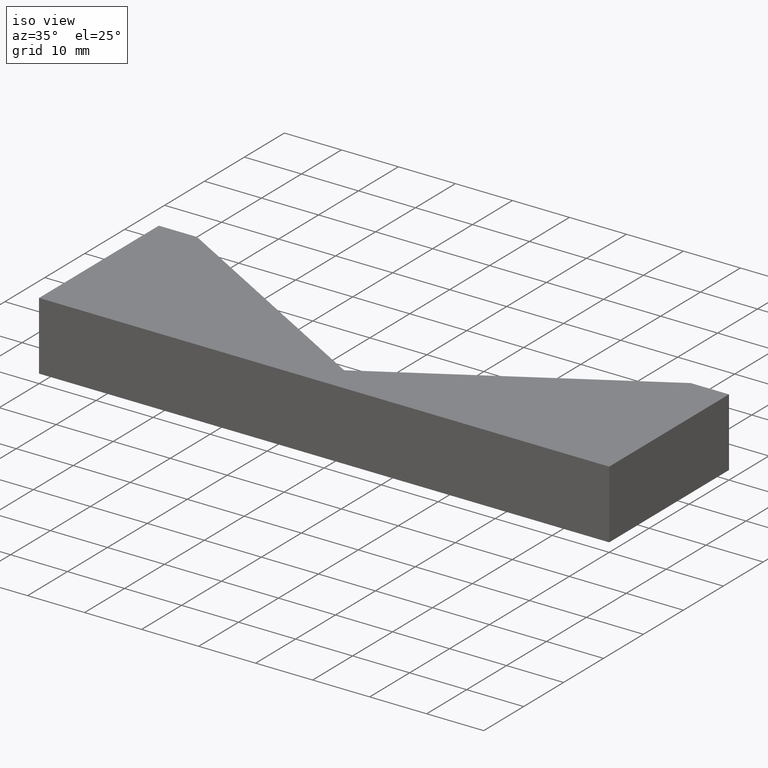
[diagram: clean part render]
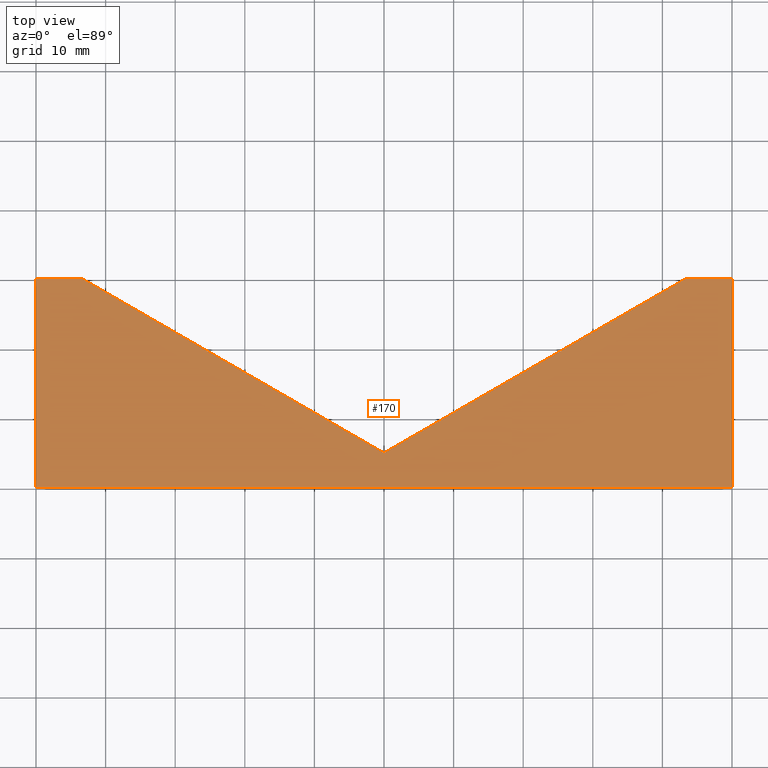
[diagram: tour spotlight — one face highlighted and labeled with its STEP entity id]
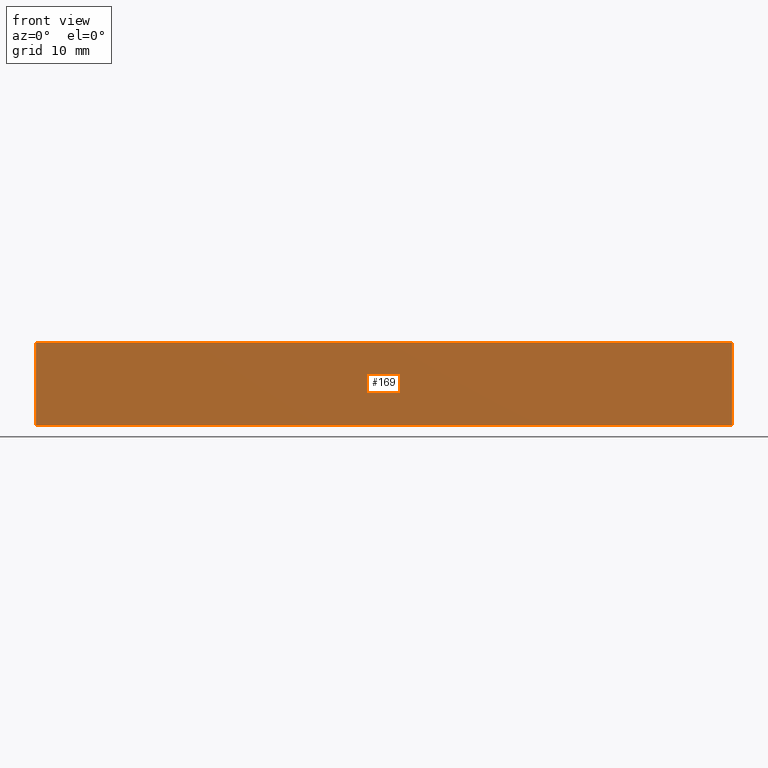
[diagram: tour spotlight — one face highlighted and labeled with its STEP entity id]
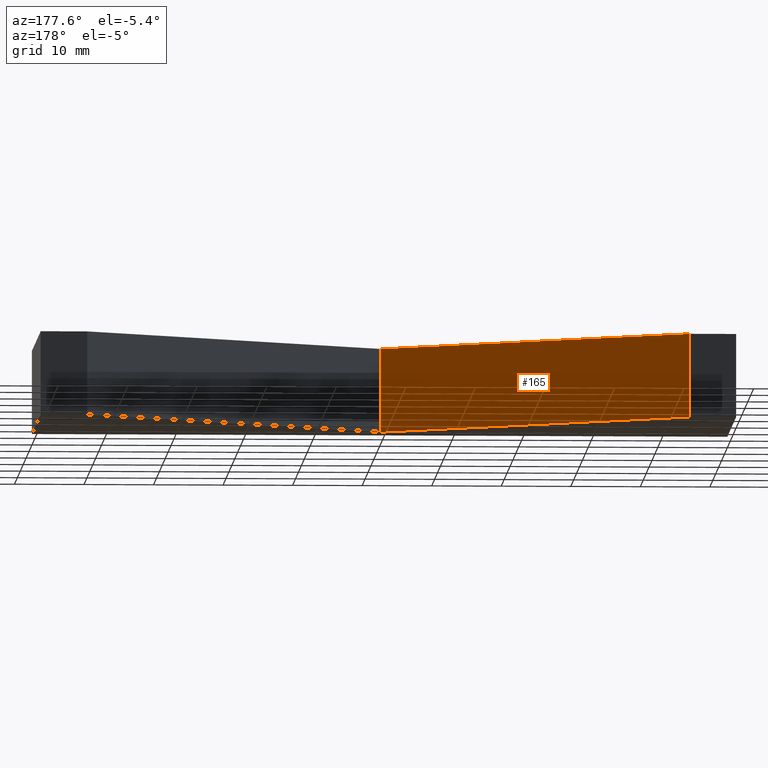
[diagram: tour spotlight — one face highlighted and labeled with its STEP entity id]
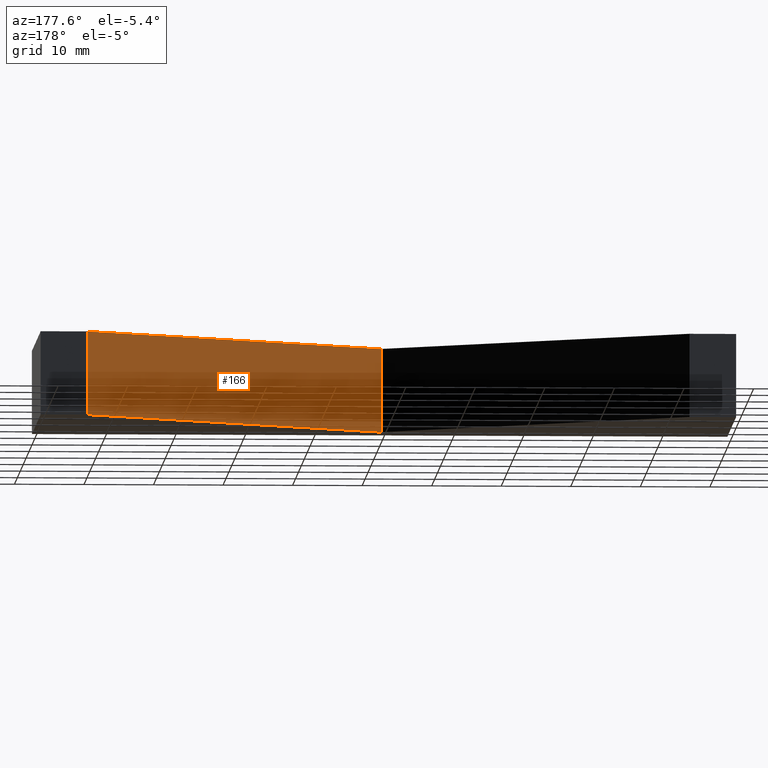
[diagram: tour spotlight — one face highlighted and labeled with its STEP entity id]
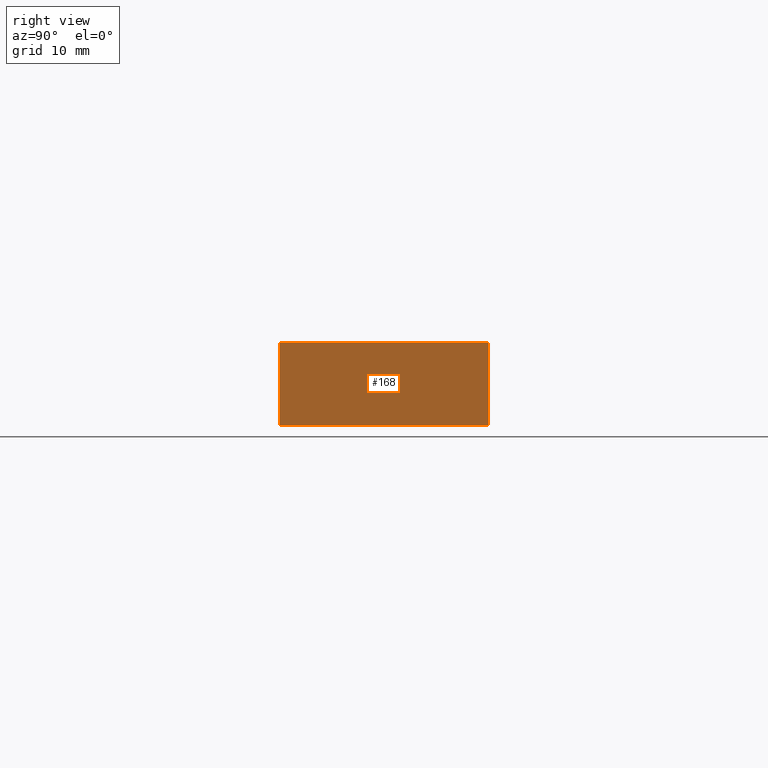
[diagram: tour spotlight — one face highlighted and labeled with its STEP entity id]
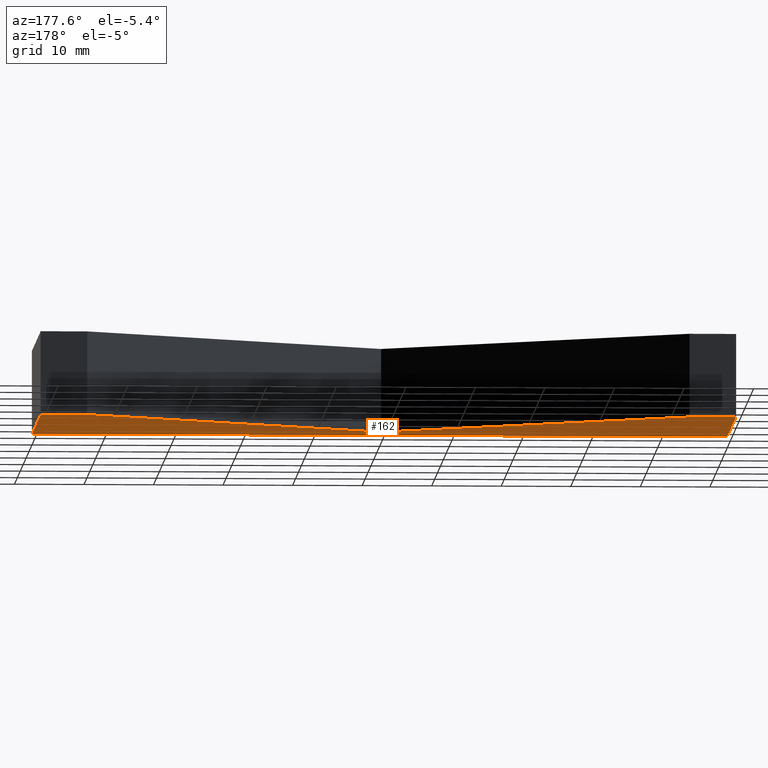
[diagram: tour spotlight — one face highlighted and labeled with its STEP entity id]
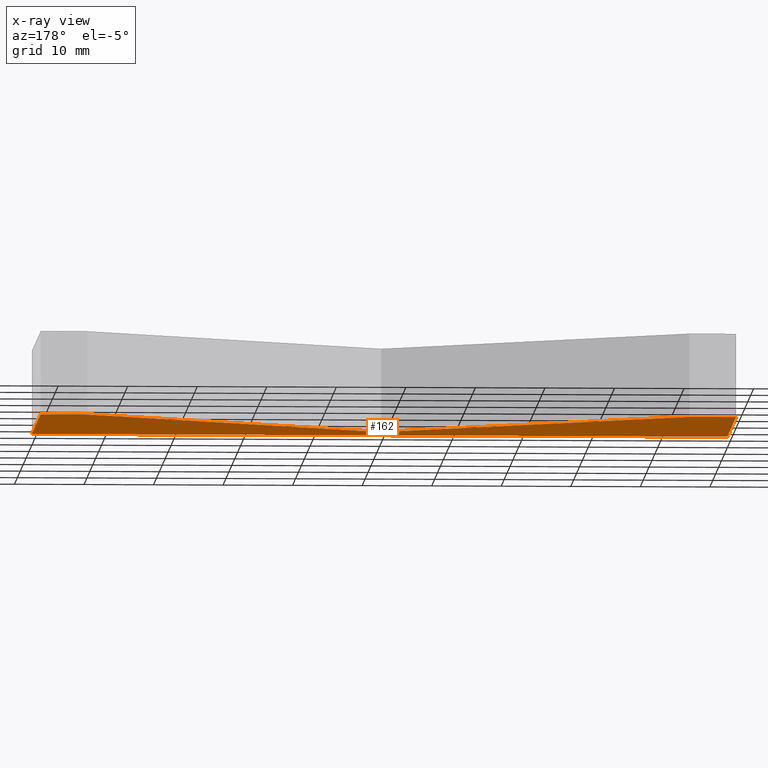
[diagram: x-ray of the same camera — body ghosted, this tour face saturated]
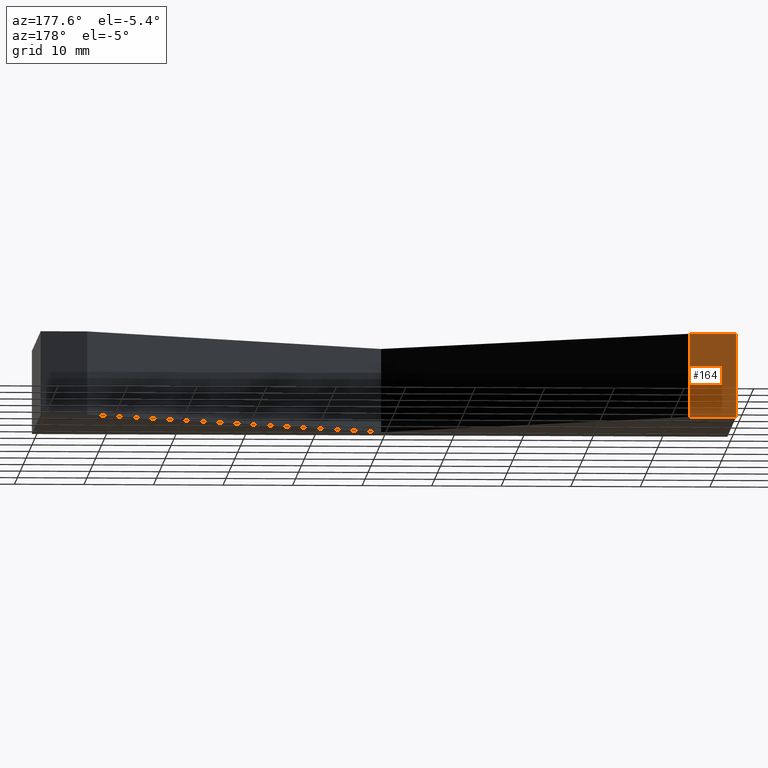
[diagram: tour spotlight — one face highlighted and labeled with its STEP entity id]
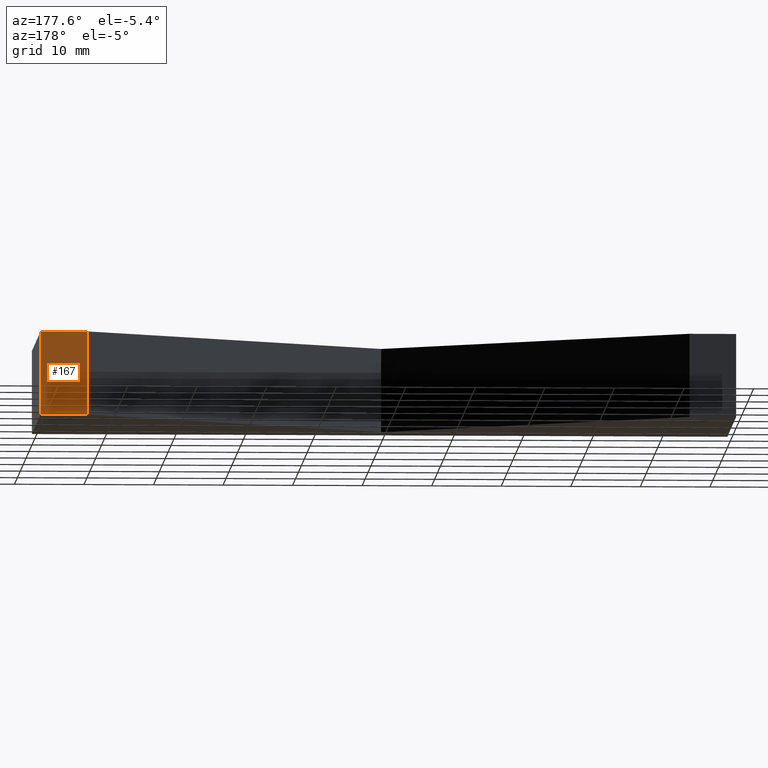
[diagram: tour spotlight — one face highlighted and labeled with its STEP entity id]
A machine part: a face-by-face anatomy tour. The part has 9 B-rep faces; the first image is the clean iso view, then the 8 largest visible faces are spotlighted one at a time (largest first), each with its STEP entity span.

Face 1 — top view, entity #170. In plain terms, the highlighted planar face has unit normal (0, 0, 1).
Definition (entity closure, byte-faithful):
#24=FACE_OUTER_BOUND('',#33,.T.);
#33=EDGE_LOOP('',(#146,#147,#148,#149,#150,#151,#152));
#41=LINE('',#263,#62);
#44=LINE('',#268,#65);
#46=LINE('',#272,#67);
#48=LINE('',#276,#69);
#50=LINE('',#280,#71);
#52=LINE('',#284,#73);
#54=LINE('',#287,#75);
#62=VECTOR('',#216,10.);
#65=VECTOR('',#221,10.);
#67=VECTOR('',#225,10.);
#69=VECTOR('',#229,10.);
#71=VECTOR('',#233,10.);
#73=VECTOR('',#237,10.);
#75=VECTOR('',#241,10.);
#83=VERTEX_POINT('',#261);
#84=VERTEX_POINT('',#262);
#85=VERTEX_POINT('',#267);
#86=VERTEX_POINT('',#271);
#87=VERTEX_POINT('',#275);
#88=VERTEX_POINT('',#279);
#89=VERTEX_POINT('',#283);
#97=EDGE_CURVE('',#83,#84,#41,.T.);
#100=EDGE_CURVE('',#84,#85,#44,.T.);
#102=EDGE_CURVE('',#85,#86,#46,.T.);
#104=EDGE_CURVE('',#86,#87,#48,.T.);
#106=EDGE_CURVE('',#87,#88,#50,.T.);
#108=EDGE_CURVE('',#88,#89,#52,.T.);
#110=EDGE_CURVE('',#89,#83,#54,.T.);
#146=ORIENTED_EDGE('',*,*,#97,.F.);
#147=ORIENTED_EDGE('',*,*,#110,.F.);
#148=ORIENTED_EDGE('',*,*,#108,.F.);
#149=ORIENTED_EDGE('',*,*,#106,.F.);
#150=ORIENTED_EDGE('',*,*,#104,.F.);
#151=ORIENTED_EDGE('',*,*,#102,.F.);
#152=ORIENTED_EDGE('',*,*,#100,.F.);
#161=PLANE('',#202);
#170=ADVANCED_FACE('',(#24),#161,.T.);
#202=AXIS2_PLACEMENT_3D('',#288,#242,#243);
#216=DIRECTION('',(0.,1.,0.));
#221=DIRECTION('',(1.,0.,0.));
#225=DIRECTION('',(0.866025403784438,-0.5,0.));
#229=DIRECTION('',(0.866025403784438,0.5,0.));
#233=DIRECTION('',(1.,0.,0.));
#237=DIRECTION('',(0.,-1.,0.));
#241=DIRECTION('',(-1.,0.,0.));
#242=DIRECTION('center_axis',(0.,0.,1.));
#243=DIRECTION('ref_axis',(1.,0.,0.));
#261=CARTESIAN_POINT('',(-50.,0.,6.));
#262=CARTESIAN_POINT('',(-50.,30.,6.));
#263=CARTESIAN_POINT('',(-50.,0.,6.));
#267=CARTESIAN_POINT('',(-43.3012701892219,30.,6.));
#268=CARTESIAN_POINT('',(-50.,30.,6.));
#271=CARTESIAN_POINT('',(0.,5.,6.));
#272=CARTESIAN_POINT('',(-43.3012701892219,30.,6.));
#275=CARTESIAN_POINT('',(43.3012701892219,30.,6.));
#276=CARTESIAN_POINT('',(0.,5.,6.));
#279=CARTESIAN_POINT('',(50.,30.,6.));
#280=CARTESIAN_POINT('',(43.3012701892219,30.,6.));
#283=CARTESIAN_POINT('',(50.,0.,6.));
#284=CARTESIAN_POINT('',(50.,30.,6.));
#287=CARTESIAN_POINT('',(50.,0.,6.));
#288=CARTESIAN_POINT('Origin',(1.11022302462516E-15,11.1629559136037,6.));

Face 2 — front view, entity #169. In plain terms, the highlighted planar face has unit normal (0, -1, 0).
Definition (entity closure, byte-faithful):
#23=FACE_OUTER_BOUND('',#32,.T.);
#32=EDGE_LOOP('',(#142,#143,#144,#145));
#35=LINE('',#250,#56);
#43=LINE('',#265,#64);
#53=LINE('',#285,#74);
#54=LINE('',#287,#75);
#56=VECTOR('',#208,10.);
#64=VECTOR('',#218,10.);
#74=VECTOR('',#238,10.);
#75=VECTOR('',#241,10.);
#76=VERTEX_POINT('',#246);
#78=VERTEX_POINT('',#249);
#83=VERTEX_POINT('',#261);
#89=VERTEX_POINT('',#283);
#91=EDGE_CURVE('',#78,#76,#35,.T.);
#99=EDGE_CURVE('',#83,#78,#43,.T.);
#109=EDGE_CURVE('',#76,#89,#53,.T.);
#110=EDGE_CURVE('',#89,#83,#54,.T.);
#142=ORIENTED_EDGE('',*,*,#110,.T.);
#143=ORIENTED_EDGE('',*,*,#99,.T.);
#144=ORIENTED_EDGE('',*,*,#91,.T.);
#145=ORIENTED_EDGE('',*,*,#109,.T.);
#160=PLANE('',#201);
#169=ADVANCED_FACE('',(#23),#160,.T.);
#201=AXIS2_PLACEMENT_3D('',#286,#239,#240);
#208=DIRECTION('',(1.,0.,0.));
#218=DIRECTION('',(0.,0.,-1.));
#238=DIRECTION('',(0.,0.,1.));
#239=DIRECTION('center_axis',(0.,-1.,0.));
#240=DIRECTION('ref_axis',(0.,0.,-1.));
#241=DIRECTION('',(-1.,0.,0.));
#246=CARTESIAN_POINT('',(50.,0.,-6.));
#249=CARTESIAN_POINT('',(-50.,0.,-6.));
#250=CARTESIAN_POINT('',(50.,0.,-6.));
#261=CARTESIAN_POINT('',(-50.,0.,6.));
#265=CARTESIAN_POINT('',(-50.,0.,0.));
#283=CARTESIAN_POINT('',(50.,0.,6.));
#285=CARTESIAN_POINT('',(50.,0.,0.));
#286=CARTESIAN_POINT('Origin',(50.,0.,0.));
#287=CARTESIAN_POINT('',(50.,0.,6.));

Face 3 — auxiliary view, entity #165. In plain terms, the highlighted planar face has unit normal (0.5, 0.866, 0).
Definition (entity closure, byte-faithful):
#19=FACE_OUTER_BOUND('',#28,.T.);
#28=EDGE_LOOP('',(#126,#127,#128,#129));
#38=LINE('',#256,#59);
#45=LINE('',#269,#66);
#46=LINE('',#272,#67);
#47=LINE('',#273,#68);
#59=VECTOR('',#211,10.);
#66=VECTOR('',#222,10.);
#67=VECTOR('',#225,10.);
#68=VECTOR('',#226,10.);
#80=VERTEX_POINT('',#253);
#81=VERTEX_POINT('',#255);
#85=VERTEX_POINT('',#267);
#86=VERTEX_POINT('',#271);
#94=EDGE_CURVE('',#81,#80,#38,.T.);
#101=EDGE_CURVE('',#85,#80,#45,.T.);
#102=EDGE_CURVE('',#85,#86,#46,.T.);
#103=EDGE_CURVE('',#86,#81,#47,.T.);
#126=ORIENTED_EDGE('',*,*,#102,.T.);
#127=ORIENTED_EDGE('',*,*,#103,.T.);
#128=ORIENTED_EDGE('',*,*,#94,.T.);
#129=ORIENTED_EDGE('',*,*,#101,.F.);
#156=PLANE('',#197);
#165=ADVANCED_FACE('',(#19),#156,.T.);
#197=AXIS2_PLACEMENT_3D('',#270,#223,#224);
#211=DIRECTION('',(-0.866025403784438,0.5,0.));
#222=DIRECTION('',(0.,0.,-1.));
#223=DIRECTION('center_axis',(0.5,0.866025403784439,0.));
#224=DIRECTION('ref_axis',(0.,0.,-1.));
#225=DIRECTION('',(0.866025403784438,-0.5,0.));
#226=DIRECTION('',(0.,0.,-1.));
#253=CARTESIAN_POINT('',(-43.3012701892219,30.,-6.));
#255=CARTESIAN_POINT('',(0.,5.,-6.));
#256=CARTESIAN_POINT('',(-43.3012701892219,30.,-6.));
#267=CARTESIAN_POINT('',(-43.3012701892219,30.,6.));
#269=CARTESIAN_POINT('',(-43.3012701892219,30.,0.));
#270=CARTESIAN_POINT('Origin',(-43.3012701892219,30.,0.));
#271=CARTESIAN_POINT('',(0.,5.,6.));
#272=CARTESIAN_POINT('',(-43.3012701892219,30.,6.));
#273=CARTESIAN_POINT('',(0.,5.,0.));

Face 4 — auxiliary view, entity #166. In plain terms, the highlighted planar face has unit normal (-0.5, 0.866, 0).
Definition (entity closure, byte-faithful):
#20=FACE_OUTER_BOUND('',#29,.T.);
#29=EDGE_LOOP('',(#130,#131,#132,#133));
#39=LINE('',#258,#60);
#47=LINE('',#273,#68);
#48=LINE('',#276,#69);
#49=LINE('',#277,#70);
#60=VECTOR('',#212,10.);
#68=VECTOR('',#226,10.);
#69=VECTOR('',#229,10.);
#70=VECTOR('',#230,10.);
#81=VERTEX_POINT('',#255);
#82=VERTEX_POINT('',#257);
#86=VERTEX_POINT('',#271);
#87=VERTEX_POINT('',#275);
#95=EDGE_CURVE('',#82,#81,#39,.T.);
#103=EDGE_CURVE('',#86,#81,#47,.T.);
#104=EDGE_CURVE('',#86,#87,#48,.T.);
#105=EDGE_CURVE('',#87,#82,#49,.T.);
#130=ORIENTED_EDGE('',*,*,#104,.T.);
#131=ORIENTED_EDGE('',*,*,#105,.T.);
#132=ORIENTED_EDGE('',*,*,#95,.T.);
#133=ORIENTED_EDGE('',*,*,#103,.F.);
#157=PLANE('',#198);
#166=ADVANCED_FACE('',(#20),#157,.T.);
#198=AXIS2_PLACEMENT_3D('',#274,#227,#228);
#212=DIRECTION('',(-0.866025403784438,-0.5,0.));
#226=DIRECTION('',(0.,0.,-1.));
#227=DIRECTION('center_axis',(-0.5,0.866025403784439,0.));
#228=DIRECTION('ref_axis',(0.,0.,1.));
#229=DIRECTION('',(0.866025403784438,0.5,0.));
#230=DIRECTION('',(0.,0.,-1.));
#255=CARTESIAN_POINT('',(0.,5.,-6.));
#257=CARTESIAN_POINT('',(43.3012701892219,30.,-6.));
#258=CARTESIAN_POINT('',(0.,5.,-6.));
#271=CARTESIAN_POINT('',(0.,5.,6.));
#273=CARTESIAN_POINT('',(0.,5.,0.));
#274=CARTESIAN_POINT('Origin',(0.,5.,0.));
#275=CARTESIAN_POINT('',(43.3012701892219,30.,6.));
#276=CARTESIAN_POINT('',(0.,5.,6.));
#277=CARTESIAN_POINT('',(43.3012701892219,30.,0.));

Face 5 — right view, entity #168. In plain terms, the highlighted planar face has unit normal (1, 0, 0).
Definition (entity closure, byte-faithful):
#22=FACE_OUTER_BOUND('',#31,.T.);
#31=EDGE_LOOP('',(#138,#139,#140,#141));
#34=LINE('',#248,#55);
#51=LINE('',#281,#72);
#52=LINE('',#284,#73);
#53=LINE('',#285,#74);
#55=VECTOR('',#207,10.);
#72=VECTOR('',#234,10.);
#73=VECTOR('',#237,10.);
#74=VECTOR('',#238,10.);
#76=VERTEX_POINT('',#246);
#77=VERTEX_POINT('',#247);
#88=VERTEX_POINT('',#279);
#89=VERTEX_POINT('',#283);
#90=EDGE_CURVE('',#76,#77,#34,.T.);
#107=EDGE_CURVE('',#88,#77,#51,.T.);
#108=EDGE_CURVE('',#88,#89,#52,.T.);
#109=EDGE_CURVE('',#76,#89,#53,.T.);
#138=ORIENTED_EDGE('',*,*,#108,.T.);
#139=ORIENTED_EDGE('',*,*,#109,.F.);
#140=ORIENTED_EDGE('',*,*,#90,.T.);
#141=ORIENTED_EDGE('',*,*,#107,.F.);
#159=PLANE('',#200);
#168=ADVANCED_FACE('',(#22),#159,.T.);
#200=AXIS2_PLACEMENT_3D('',#282,#235,#236);
#207=DIRECTION('',(0.,1.,0.));
#234=DIRECTION('',(0.,0.,-1.));
#235=DIRECTION('center_axis',(1.,0.,0.));
#236=DIRECTION('ref_axis',(0.,0.,-1.));
#237=DIRECTION('',(0.,-1.,0.));
#238=DIRECTION('',(0.,0.,1.));
#246=CARTESIAN_POINT('',(50.,0.,-6.));
#247=CARTESIAN_POINT('',(50.,30.,-6.));
#248=CARTESIAN_POINT('',(50.,30.,-6.));
#279=CARTESIAN_POINT('',(50.,30.,6.));
#281=CARTESIAN_POINT('',(50.,30.,0.));
#282=CARTESIAN_POINT('Origin',(50.,30.,0.));
#283=CARTESIAN_POINT('',(50.,0.,6.));
#284=CARTESIAN_POINT('',(50.,30.,6.));
#285=CARTESIAN_POINT('',(50.,0.,0.));

Face 6 — auxiliary view, entity #162. An x-ray twin of the same camera follows (body ghosted, this face saturated) — the face is partly hidden behind the body. In plain terms, the highlighted planar face has unit normal (0, 0, 1).
Definition (entity closure, byte-faithful):
#16=FACE_OUTER_BOUND('',#25,.T.);
#25=EDGE_LOOP('',(#111,#112,#113,#114,#115,#116,#117));
#34=LINE('',#248,#55);
#35=LINE('',#250,#56);
#36=LINE('',#252,#57);
#37=LINE('',#254,#58);
#38=LINE('',#256,#59);
#39=LINE('',#258,#60);
#40=LINE('',#259,#61);
#55=VECTOR('',#207,10.);
#56=VECTOR('',#208,10.);
#57=VECTOR('',#209,10.);
#58=VECTOR('',#210,10.);
#59=VECTOR('',#211,10.);
#60=VECTOR('',#212,10.);
#61=VECTOR('',#213,10.);
#76=VERTEX_POINT('',#246);
#77=VERTEX_POINT('',#247);
#78=VERTEX_POINT('',#249);
#79=VERTEX_POINT('',#251);
#80=VERTEX_POINT('',#253);
#81=VERTEX_POINT('',#255);
#82=VERTEX_POINT('',#257);
#90=EDGE_CURVE('',#76,#77,#34,.T.);
#91=EDGE_CURVE('',#78,#76,#35,.T.);
#92=EDGE_CURVE('',#79,#78,#36,.T.);
#93=EDGE_CURVE('',#80,#79,#37,.T.);
#94=EDGE_CURVE('',#81,#80,#38,.T.);
#95=EDGE_CURVE('',#82,#81,#39,.T.);
#96=EDGE_CURVE('',#77,#82,#40,.T.);
#111=ORIENTED_EDGE('',*,*,#90,.F.);
#112=ORIENTED_EDGE('',*,*,#91,.F.);
#113=ORIENTED_EDGE('',*,*,#92,.F.);
#114=ORIENTED_EDGE('',*,*,#93,.F.);
#115=ORIENTED_EDGE('',*,*,#94,.F.);
#116=ORIENTED_EDGE('',*,*,#95,.F.);
#117=ORIENTED_EDGE('',*,*,#96,.F.);
#153=PLANE('',#194);
#162=ADVANCED_FACE('',(#16),#153,.F.);
#194=AXIS2_PLACEMENT_3D('',#245,#205,#206);
#205=DIRECTION('center_axis',(0.,0.,1.));
#206=DIRECTION('ref_axis',(1.,0.,0.));
#207=DIRECTION('',(0.,1.,0.));
#208=DIRECTION('',(1.,0.,0.));
#209=DIRECTION('',(0.,-1.,0.));
#210=DIRECTION('',(-1.,0.,0.));
#211=DIRECTION('',(-0.866025403784438,0.5,0.));
#212=DIRECTION('',(-0.866025403784438,-0.5,0.));
#213=DIRECTION('',(-1.,0.,0.));
#245=CARTESIAN_POINT('Origin',(1.11022302462516E-15,11.1629559136037,-6.));
#246=CARTESIAN_POINT('',(50.,0.,-6.));
#247=CARTESIAN_POINT('',(50.,30.,-6.));
#248=CARTESIAN_POINT('',(50.,30.,-6.));
#249=CARTESIAN_POINT('',(-50.,0.,-6.));
#250=CARTESIAN_POINT('',(50.,0.,-6.));
#251=CARTESIAN_POINT('',(-50.,30.,-6.));
#252=CARTESIAN_POINT('',(-50.,0.,-6.));
#253=CARTESIAN_POINT('',(-43.3012701892219,30.,-6.));
#254=CARTESIAN_POINT('',(-50.,30.,-6.));
#255=CARTESIAN_POINT('',(0.,5.,-6.));
#256=CARTESIAN_POINT('',(-43.3012701892219,30.,-6.));
#257=CARTESIAN_POINT('',(43.3012701892219,30.,-6.));
#258=CARTESIAN_POINT('',(0.,5.,-6.));
#259=CARTESIAN_POINT('',(43.3012701892219,30.,-6.));

Face 7 — auxiliary view, entity #164. In plain terms, the highlighted planar face has unit normal (0, 1, 0).
Definition (entity closure, byte-faithful):
#18=FACE_OUTER_BOUND('',#27,.T.);
#27=EDGE_LOOP('',(#122,#123,#124,#125));
#37=LINE('',#254,#58);
#42=LINE('',#264,#63);
#44=LINE('',#268,#65);
#45=LINE('',#269,#66);
#58=VECTOR('',#210,10.);
#63=VECTOR('',#217,10.);
#65=VECTOR('',#221,10.);
#66=VECTOR('',#222,10.);
#79=VERTEX_POINT('',#251);
#80=VERTEX_POINT('',#253);
#84=VERTEX_POINT('',#262);
#85=VERTEX_POINT('',#267);
#93=EDGE_CURVE('',#80,#79,#37,.T.);
#98=EDGE_CURVE('',#84,#79,#42,.T.);
#100=EDGE_CURVE('',#84,#85,#44,.T.);
#101=EDGE_CURVE('',#85,#80,#45,.T.);
#122=ORIENTED_EDGE('',*,*,#100,.T.);
#123=ORIENTED_EDGE('',*,*,#101,.T.);
#124=ORIENTED_EDGE('',*,*,#93,.T.);
#125=ORIENTED_EDGE('',*,*,#98,.F.);
#155=PLANE('',#196);
#164=ADVANCED_FACE('',(#18),#155,.T.);
#196=AXIS2_PLACEMENT_3D('',#266,#219,#220);
#210=DIRECTION('',(-1.,0.,0.));
#217=DIRECTION('',(0.,0.,-1.));
#219=DIRECTION('center_axis',(0.,1.,0.));
#220=DIRECTION('ref_axis',(0.,0.,1.));
#221=DIRECTION('',(1.,0.,0.));
#222=DIRECTION('',(0.,0.,-1.));
#251=CARTESIAN_POINT('',(-50.,30.,-6.));
#253=CARTESIAN_POINT('',(-43.3012701892219,30.,-6.));
#254=CARTESIAN_POINT('',(-50.,30.,-6.));
#262=CARTESIAN_POINT('',(-50.,30.,6.));
#264=CARTESIAN_POINT('',(-50.,30.,0.));
#266=CARTESIAN_POINT('Origin',(-50.,30.,0.));
#267=CARTESIAN_POINT('',(-43.3012701892219,30.,6.));
#268=CARTESIAN_POINT('',(-50.,30.,6.));
#269=CARTESIAN_POINT('',(-43.3012701892219,30.,0.));

Face 8 — auxiliary view, entity #167. In plain terms, the highlighted planar face has unit normal (0, 1, 0).
Definition (entity closure, byte-faithful):
#21=FACE_OUTER_BOUND('',#30,.T.);
#30=EDGE_LOOP('',(#134,#135,#136,#137));
#40=LINE('',#259,#61);
#49=LINE('',#277,#70);
#50=LINE('',#280,#71);
#51=LINE('',#281,#72);
#61=VECTOR('',#213,10.);
#70=VECTOR('',#230,10.);
#71=VECTOR('',#233,10.);
#72=VECTOR('',#234,10.);
#77=VERTEX_POINT('',#247);
#82=VERTEX_POINT('',#257);
#87=VERTEX_POINT('',#275);
#88=VERTEX_POINT('',#279);
#96=EDGE_CURVE('',#77,#82,#40,.T.);
#105=EDGE_CURVE('',#87,#82,#49,.T.);
#106=EDGE_CURVE('',#87,#88,#50,.T.);
#107=EDGE_CURVE('',#88,#77,#51,.T.);
#134=ORIENTED_EDGE('',*,*,#106,.T.);
#135=ORIENTED_EDGE('',*,*,#107,.T.);
#136=ORIENTED_EDGE('',*,*,#96,.T.);
#137=ORIENTED_EDGE('',*,*,#105,.F.);
#158=PLANE('',#199);
#167=ADVANCED_FACE('',(#21),#158,.T.);
#199=AXIS2_PLACEMENT_3D('',#278,#231,#232);
#213=DIRECTION('',(-1.,0.,0.));
#230=DIRECTION('',(0.,0.,-1.));
#231=DIRECTION('center_axis',(0.,1.,0.));
#232=DIRECTION('ref_axis',(0.,0.,1.));
#233=DIRECTION('',(1.,0.,0.));
#234=DIRECTION('',(0.,0.,-1.));
#247=CARTESIAN_POINT('',(50.,30.,-6.));
#257=CARTESIAN_POINT('',(43.3012701892219,30.,-6.));
#259=CARTESIAN_POINT('',(43.3012701892219,30.,-6.));
#275=CARTESIAN_POINT('',(43.3012701892219,30.,6.));
#277=CARTESIAN_POINT('',(43.3012701892219,30.,0.));
#278=CARTESIAN_POINT('Origin',(43.3012701892219,30.,0.));
#279=CARTESIAN_POINT('',(50.,30.,6.));
#280=CARTESIAN_POINT('',(43.3012701892219,30.,6.));
#281=CARTESIAN_POINT('',(50.,30.,0.));